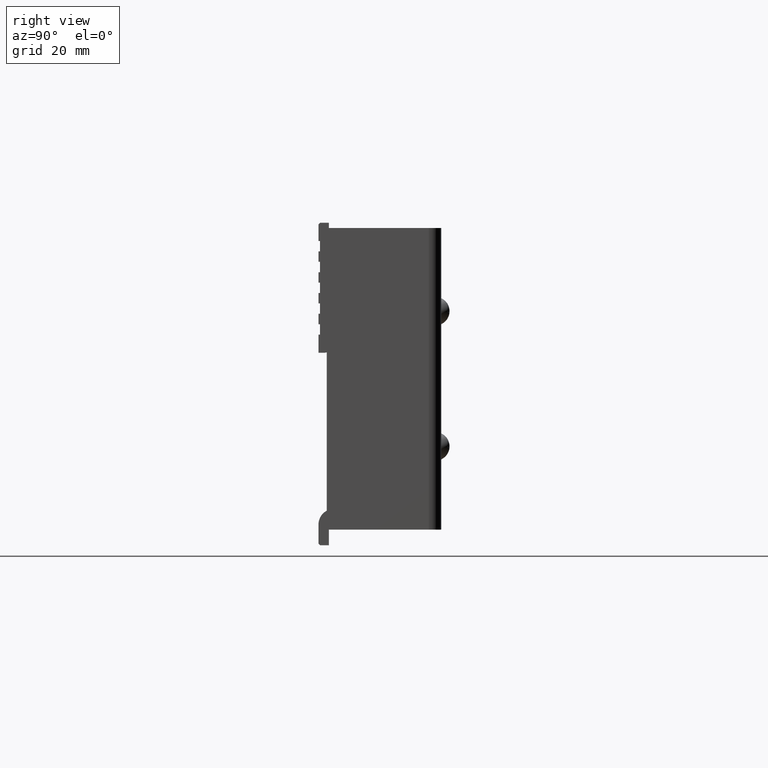
[diagram: clean part render]
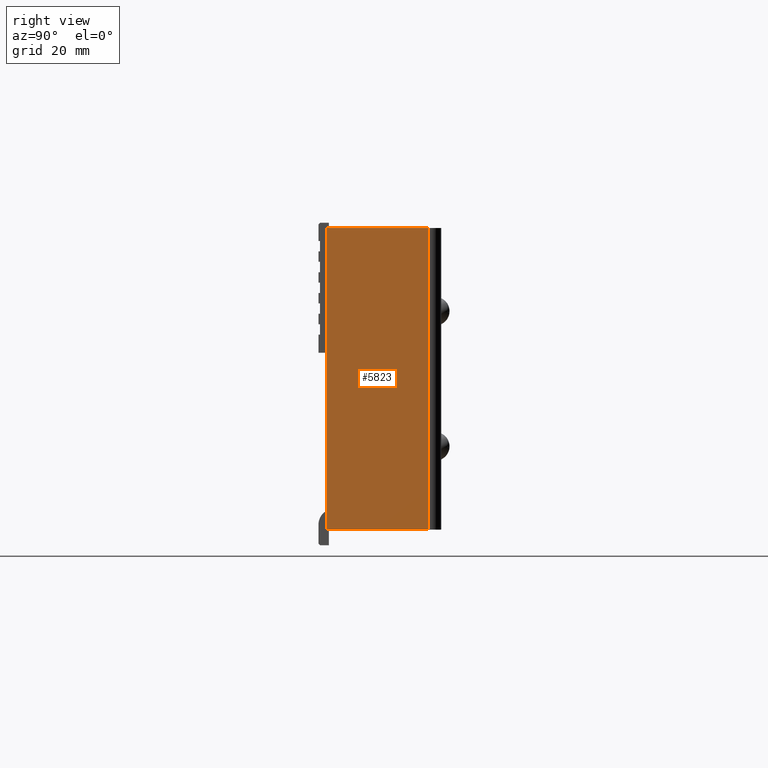
[diagram: same view with one face highlighted and labeled with its STEP entity id]
A machine part, right view. The second image highlights one B-rep face of the part: STEP entity #5823.
In plain terms, the highlighted face is a freeform B-spline surface patch.
Its self-contained STEP definition (entity closure, byte-faithful):
#5618=CARTESIAN_POINT('',(61.850000000000001,-22.0,29.0));
#5619=VERTEX_POINT('',#5618);
#5625=CARTESIAN_POINT('',(61.850000000000001,-2.400000000000000,29.0));
#5626=VERTEX_POINT('',#5625);
#5627=CARTESIAN_POINT('',(61.850000000000001,-22.0,29.0));
#5628=CARTESIAN_POINT('',(61.850000000000001,-2.400000000000000,29.0));
#5629=QUASI_UNIFORM_CURVE('',1,(#5627,#5628),.UNSPECIFIED.,.F.,.U.);
#5630=EDGE_CURVE('',#5619,#5626,#5629,.T.);
#5684=CARTESIAN_POINT('',(61.850000000000001,-2.400000000000000,-29.0));
#5685=VERTEX_POINT('',#5684);
#5699=CARTESIAN_POINT('',(61.850000000000001,-22.0,-29.0));
#5700=VERTEX_POINT('',#5699);
#5701=CARTESIAN_POINT('',(61.850000000000001,-22.0,-29.0));
#5702=CARTESIAN_POINT('',(61.850000000000001,-2.400000000000000,-29.0));
#5703=QUASI_UNIFORM_CURVE('',1,(#5701,#5702),.UNSPECIFIED.,.F.,.U.);
#5704=EDGE_CURVE('',#5700,#5685,#5703,.T.);
#5794=CARTESIAN_POINT('',(61.850000000000001,-2.400000000000000,-29.0));
#5795=CARTESIAN_POINT('',(61.850000000000001,-2.400000000000000,29.0));
#5796=QUASI_UNIFORM_CURVE('',1,(#5794,#5795),.UNSPECIFIED.,.F.,.U.);
#5797=EDGE_CURVE('',#5685,#5626,#5796,.T.);
#5808=CARTESIAN_POINT('',(61.850000000000001,-22.979019962011400,31.897099887584751));
#5809=CARTESIAN_POINT('',(61.850000000000001,-22.979019962011400,-31.897101443265981));
#5810=CARTESIAN_POINT('',(61.850000000000001,-1.420979512275636,31.897099887584751));
#5811=CARTESIAN_POINT('',(61.850000000000001,-1.420979512275636,-31.897101443265981));
#5812=B_SPLINE_SURFACE_WITH_KNOTS('',1,1,((#5808,#5810),(#5809,#5811)),.UNSPECIFIED.,.F.,.F.,.U.,(2,2),(2,2),(0.0,63.794201330850733),(0.0,21.558040449735760),.UNSPECIFIED.);
#5813=ORIENTED_EDGE('',*,*,#5630,.F.);
#5814=CARTESIAN_POINT('',(61.850000000000001,-22.0,-29.0));
#5815=CARTESIAN_POINT('',(61.850000000000001,-22.0,29.0));
#5816=QUASI_UNIFORM_CURVE('',1,(#5814,#5815),.UNSPECIFIED.,.F.,.U.);
#5817=EDGE_CURVE('',#5700,#5619,#5816,.T.);
#5818=ORIENTED_EDGE('',*,*,#5817,.F.);
#5819=ORIENTED_EDGE('',*,*,#5704,.T.);
#5820=ORIENTED_EDGE('',*,*,#5797,.T.);
#5821=EDGE_LOOP('',(#5813,#5818,#5819,#5820));
#5822=FACE_OUTER_BOUND('',#5821,.T.);
#5823=ADVANCED_FACE('',(#5822),#5812,.T.);